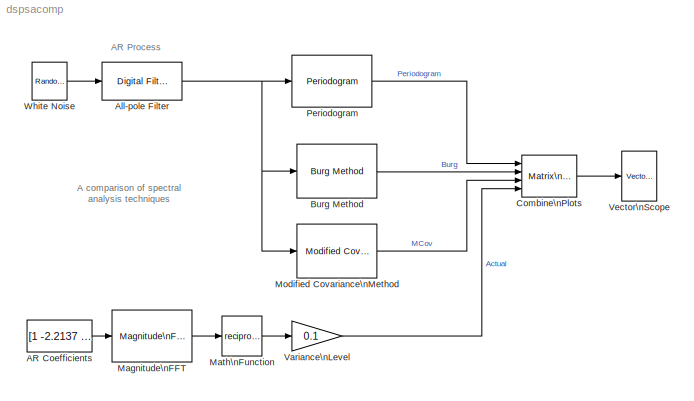
MODEL dspsacomp
KIND model
BLOCK [Constant] AR Coefficients
  Value = [1 -2.2137 2.9403 -2.1697 0.9606]
BLOCK [Reference] All-pole Filter  REF=dsparch4/Digital Filter
  AllPoleFiltStruct = Direct form
  BiQuadCoeffs = [1 0.3 0.4 1 0.1 0.2]
  CoeffSource = Specify via dialog
  DenCoeffs = [1 -2.2137 2.9403 -2.1697 0.9606]
  FIRFiltStruct = Direct form
  FiltPerSampPopup = One filter per frame
  IC = 0
  ICden = 0
  ICnum = 0
  IIRFiltStruct = Direct form II transposed
  LatticeCoeffs = [0.2 0.4]
  NumCoeffs = [1 2]
  Ports = [1, 1]
  SourceBlock = dsparch4/Digital Filter
  SourceType = Digital Filter
  TypePopup = IIR (all poles)
  accumFracLength = 30
  accumMode = Same as product output
  accumWordLength = 32
  additionalParams = off
  allowOverrides = on
  denIgnore = on
  firstCoeffFracLength = 15
  firstCoeffMode = Same as input
  firstCoeffWordLength = 16
  memoryFracLength = 15
  memoryMode = Same as input
  memoryWordLength = 16
  outputFracLength = 15
  outputMode = Same as input
  outputWordLength = 16
  overflowMode = off
  prodOutputFracLength = 30
  prodOutputMode = Same as input
  prodOutputWordLength = 32
  roundingMode = Floor
  secondCoeffFracLength = 15
  secondCoeffMode = Same as numerator
  secondCoeffWordLength = 16
  showAcc = off
  showCoeff = off
  showMem = off
  showMpy = off
  showOut = off
  thirdCoeffFracLength = 15
  thirdCoeffMode = Same as input
  thirdCoeffWordLength = 16
BLOCK [Reference] Burg Method  REF=dspspect3/Burg Method
  Ports = [1, 1]
  ShowPortLabels = on
  SourceBlock = dspspect3/Burg Method
  SourceType = Burg Method
  fftsize = 128
  inheritFFT = off
  inheritOrd = off
  ord = 4
BLOCK [Reference] Combine\nPlots  REF=simulink/Math\nOperations/Matrix\nConcatenation
  Ports = [4, 1]
  SourceBlock = simulink/Math\nOperations/Matrix\nConcatenation
  SourceType = Matrix Concatenation
  catMethod = Horizontal
  numInports = 4
BLOCK [Reference] Magnitude\nFFT  REF=dspspect3/Magnitude\nFFT
  Ports = [1, 1]
  ShowPortLabels = on
  SourceBlock = dspspect3/Magnitude\nFFT
  SourceType = Magnitude FFT
  fftLenInherit = off
  fftsize = 128
  mag_or_magsq = Magnitude squared
BLOCK [Math] Math\nFunction
  Operator = reciprocal
  Ports = [1, 1]
BLOCK [Reference] Modified Covariance\nMethod  REF=dspspect3/Modified Covariance\nMethod
  Ports = [1, 1]
  ShowPortLabels = on
  SourceBlock = dspspect3/Modified Covariance\nMethod
  SourceType = Modified Covariance Method
  fftsize = 128
  inheritFFT = off
  ord = 4
BLOCK [Reference] Periodogram  REF=dspspect3/Periodogram
  Ports = [1, 1]
  Rs = 50
  ShowPortLabels = on
  SourceBlock = dspspect3/Periodogram
  SourceType = Periodogram
  beta = 5
  fftsize = 128
  inheritFFT = off
  navg = 4
  winsamp = Symmetric
  wintype = Hamming
BLOCK [Gain] Variance\nLevel
  Gain = 0.1
BLOCK [Reference] Vector\nScope  REF=dspsnks4/Vector\nScope
  AxisGrid = on
  AxisLegend = on
  AxisProperties = on
  AxisZoom = off
  DisplayProperties = off
  Domain = Frequency
  FigPos = [38 195 560 293]
  FrameNumber = on
  HorizSpan = 1
  InheritXIncr = off
  LineColors = [1 0 0]|[0 1 0]|[0 0 1]
  LineProperties = off
  Memory = off
  OpenScopeAtSimStart = on
  OpenScopeImmediately = off
  Ports = [1]
  ScopeProperties = off
  ShowPortLabels = off
  SourceBlock = dspsnks4/Vector\nScope
  SourceType = Vector Scope
  XIncr = 1/1000
  XLabel = Samples
  XRange = [0...Fs/2]
  XUnits = Hertz
  YLabel = Amplitude
  YMax = 35.1414095795369
  YMin = -36.5241171110829
  YUnits = dB
BLOCK [Reference] White Noise  REF=dspsrcs4/Random\nSource
  CltLength = 12
  DataType = Double
  Diagnostics = AllowInheritedTsInSrc
  Inherit = off
  Max = 1
  Mean = 0
  Min = 0
  NormMethod = Ziggurat
  OutComplex = Real
  Ports = [0, 1]
  RepMode = Specify seed
  SampFrame = 64
  SampMode = Discrete
  SampTime = 1/1000
  Seed = 0
  SourceBlock = dspsrcs4/Random\nSource
  SourceType = Random Source
  SrcType = Gaussian
  Var = 0.1
ANNOTATION (root): A comparison of spectral\nanalysis techniques
ANNOTATION (root): AR Process
LINE AR Coefficients:1 -> Magnitude\nFFT:1
NET All-pole Filter:1 -> Burg Method:1, Modified Covariance\nMethod:1, Periodogram:1
LINE Burg Method:1 -> Combine\nPlots:2
LINE Combine\nPlots:1 -> Vector\nScope:1
LINE Magnitude\nFFT:1 -> Math\nFunction:1
LINE Math\nFunction:1 -> Variance\nLevel:1
LINE Modified Covariance\nMethod:1 -> Combine\nPlots:3
LINE Periodogram:1 -> Combine\nPlots:1
LINE Variance\nLevel:1 -> Combine\nPlots:4
LINE White Noise:1 -> All-pole Filter:1
note: NET lines group one-source signal fan-out (src -> all destinations, sorted); 1:1 wires keep LINE
